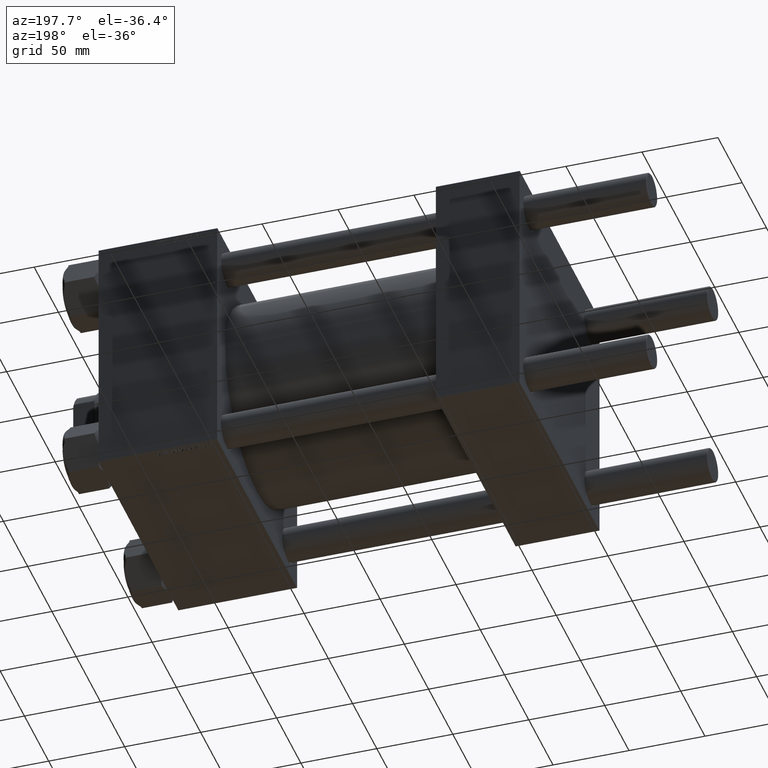
[diagram: clean part render]
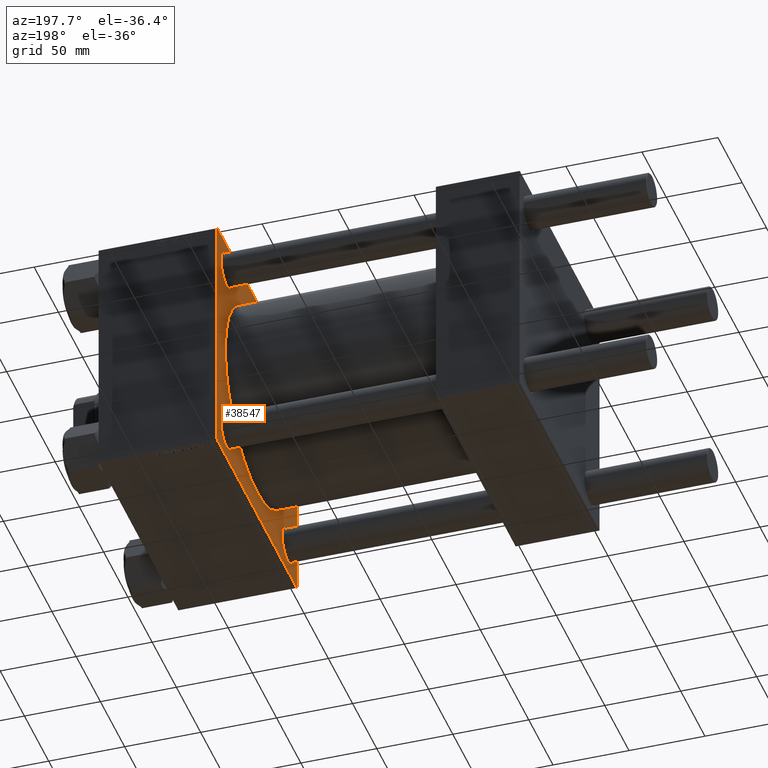
[diagram: same view with one face highlighted and labeled with its STEP entity id]
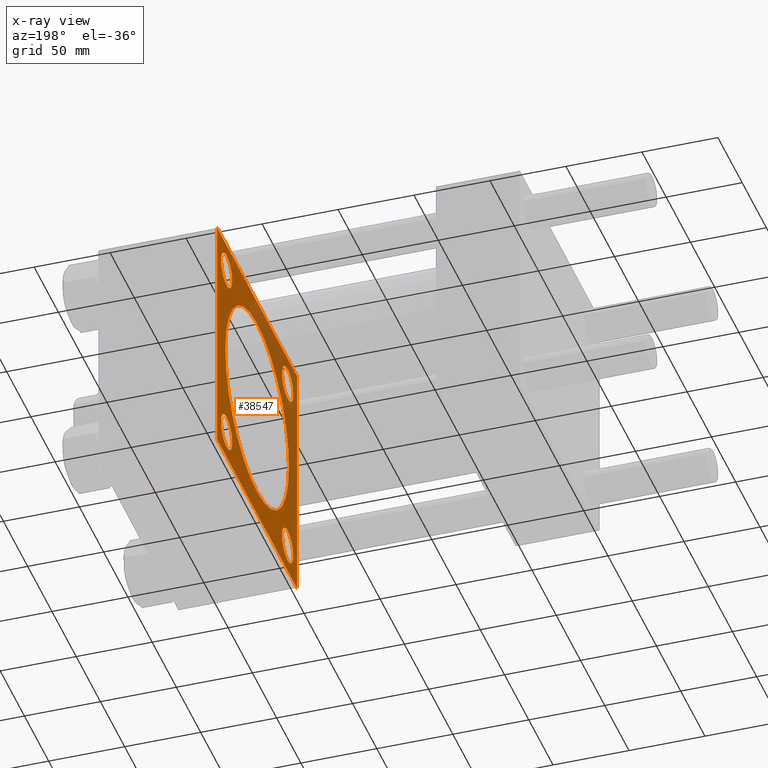
[diagram: x-ray of the same camera — body ghosted, the highlighted face saturated]
A machine part, auxiliary view. The second image highlights one B-rep face of the part: STEP entity #38547.
The next image is the same camera in x-ray: the body ghosted, the highlighted face saturated — about 31% of this face is hidden behind the body in this view.
In plain terms, the highlighted planar face has unit normal (-1, 0, 0).
Its self-contained STEP definition (entity closure, byte-faithful):
#606 = EDGE_CURVE ( 'NONE', #43558, #34295, #28354, .T. ) ;
#828 = CARTESIAN_POINT ( 'NONE',  ( 198.9999999999999716, 0.000000000000000000, 0.000000000000000000 ) ) ;
#929 = CARTESIAN_POINT ( 'NONE',  ( 198.9999999999999716, 82.50000000000001421, 82.50000000000000000 ) ) ;
#955 = ORIENTED_EDGE ( 'NONE', *, *, #39192, .T. ) ;
#1543 = DIRECTION ( 'NONE',  ( 0.000000000000000000, 0.000000000000000000, 1.000000000000000000 ) ) ;
#1869 = CIRCLE ( 'NONE', #21421, 11.49999999999992717 ) ;
#2052 = EDGE_CURVE ( 'NONE', #45145, #50472, #37233, .T. ) ;
#2469 = EDGE_CURVE ( 'NONE', #13764, #42775, #33161, .T. ) ;
#3042 = CARTESIAN_POINT ( 'NONE',  ( 198.9999999999999716, 62.95000000000000284, -74.45000000000010232 ) ) ;
#3587 = ORIENTED_EDGE ( 'NONE', *, *, #47274, .T. ) ;
#4396 = CARTESIAN_POINT ( 'NONE',  ( 198.9999999999999716, 62.95000000000000284, -51.44999999999991047 ) ) ;
#4426 = DIRECTION ( 'NONE',  ( 1.000000000000000000, 0.000000000000000000, -0.000000000000000000 ) ) ;
#4442 = LINE ( 'NONE', #46785, #44709 ) ;
#4508 = FACE_OUTER_BOUND ( 'NONE', #43540, .T. ) ;
#4756 = CARTESIAN_POINT ( 'NONE',  ( 198.9999999999999716, 0.000000000000000000, 0.000000000000000000 ) ) ;
#5384 = DIRECTION ( 'NONE',  ( 1.000000000000000000, 0.000000000000000000, -0.000000000000000000 ) ) ;
#5419 = LINE ( 'NONE', #20984, #11722 ) ;
#5575 = DIRECTION ( 'NONE',  ( 1.000000000000000000, 0.000000000000000000, -0.000000000000000000 ) ) ;
#6756 = LINE ( 'NONE', #37380, #16080 ) ;
#7096 = CIRCLE ( 'NONE', #48644, 11.49999999999992717 ) ;
#7192 = AXIS2_PLACEMENT_3D ( 'NONE', #29350, #5384, #9463 ) ;
#7299 = LINE ( 'NONE', #23125, #23743 ) ;
#8409 = ORIENTED_EDGE ( 'NONE', *, *, #30287, .T. ) ;
#8663 = CARTESIAN_POINT ( 'NONE',  ( 198.9999999999999716, -62.94999999999998153, 62.95000000000001705 ) ) ;
#8885 = CIRCLE ( 'NONE', #13773, 65.50000000000001421 ) ;
#9317 = CIRCLE ( 'NONE', #44343, 11.50000000000009415 ) ;
#9419 = DIRECTION ( 'NONE',  ( 1.000000000000000000, 0.000000000000000000, -0.000000000000000000 ) ) ;
#9463 = DIRECTION ( 'NONE',  ( 0.000000000000000000, 0.000000000000000000, 1.000000000000000000 ) ) ;
#9905 = CARTESIAN_POINT ( 'NONE',  ( 198.9999999999999716, -81.99999999999998579, -82.50000000000002842 ) ) ;
#10149 = CARTESIAN_POINT ( 'NONE',  ( 198.9999999999999716, -62.94999999999998153, -74.45000000000011653 ) ) ;
#10682 = ORIENTED_EDGE ( 'NONE', *, *, #48374, .T. ) ;
#10843 = CARTESIAN_POINT ( 'NONE',  ( 198.9999999999999716, -82.24999999999886313, -82.25000000000115108 ) ) ;
#11722 = VECTOR ( 'NONE', #36557, 1000.000000000000114 ) ;
#11911 = DIRECTION ( 'NONE',  ( 0.000000000000000000, 0.000000000000000000, 1.000000000000000000 ) ) ;
#12165 = LINE ( 'NONE', #929, #35973 ) ;
#12824 = CARTESIAN_POINT ( 'NONE',  ( 198.9999999999999716, -62.94999999999998153, -62.95000000000001705 ) ) ;
#12831 = EDGE_CURVE ( 'NONE', #39007, #43762, #27694, .T. ) ;
#13085 = AXIS2_PLACEMENT_3D ( 'NONE', #4756, #46605, #11911 ) ;
#13764 = VERTEX_POINT ( 'NONE', #24998 ) ;
#13773 = AXIS2_PLACEMENT_3D ( 'NONE', #828, #27355, #42922 ) ;
#14435 = VECTOR ( 'NONE', #37739, 1000.000000000000000 ) ;
#15272 = CIRCLE ( 'NONE', #19349, 11.50000000000009415 ) ;
#15854 = ORIENTED_EDGE ( 'NONE', *, *, #19972, .T. ) ;
#16080 = VECTOR ( 'NONE', #49345, 1000.000000000000000 ) ;
#16151 = ORIENTED_EDGE ( 'NONE', *, *, #16364, .F. ) ;
#16347 = ORIENTED_EDGE ( 'NONE', *, *, #30902, .T. ) ;
#16364 = EDGE_CURVE ( 'NONE', #39566, #38526, #12165, .T. ) ;
#17498 = CARTESIAN_POINT ( 'NONE',  ( 198.9999999999999716, -82.50000000000000000, -82.00000000000002842 ) ) ;
#17645 = ORIENTED_EDGE ( 'NONE', *, *, #12831, .T. ) ;
#18010 = CARTESIAN_POINT ( 'NONE',  ( 198.9999999999999716, 82.50000000000001421, -82.00000000000002842 ) ) ;
#18076 = DIRECTION ( 'NONE',  ( 1.000000000000000000, 0.000000000000000000, 0.000000000000000000 ) ) ;
#18449 = VERTEX_POINT ( 'NONE', #9905 ) ;
#18737 = EDGE_LOOP ( 'NONE', ( #15854, #21665 ) ) ;
#18764 = CARTESIAN_POINT ( 'NONE',  ( 198.9999999999999716, 8.021436534415166404E-15, -65.50000000000001421 ) ) ;
#19303 = DIRECTION ( 'NONE',  ( -0.000000000000000000, 0.7071067811865574537, 0.7071067811865376918 ) ) ;
#19349 = AXIS2_PLACEMENT_3D ( 'NONE', #12824, #24545, #48009 ) ;
#19972 = EDGE_CURVE ( 'NONE', #42162, #42438, #1869, .T. ) ;
#20929 = ORIENTED_EDGE ( 'NONE', *, *, #2052, .T. ) ;
#20984 = CARTESIAN_POINT ( 'NONE',  ( 198.9999999999999716, 82.25000000000001421, -82.25000000000001421 ) ) ;
#21144 = DIRECTION ( 'NONE',  ( 0.000000000000000000, 0.000000000000000000, 1.000000000000000000 ) ) ;
#21244 = ORIENTED_EDGE ( 'NONE', *, *, #23435, .T. ) ;
#21421 = AXIS2_PLACEMENT_3D ( 'NONE', #8663, #40792, #29047 ) ;
#21549 = EDGE_LOOP ( 'NONE', ( #10682, #26992 ) ) ;
#21665 = ORIENTED_EDGE ( 'NONE', *, *, #22882, .T. ) ;
#21883 = DIRECTION ( 'NONE',  ( 0.000000000000000000, 0.000000000000000000, -1.000000000000000000 ) ) ;
#22213 = EDGE_LOOP ( 'NONE', ( #49419, #955 ) ) ;
#22402 = CARTESIAN_POINT ( 'NONE',  ( 198.9999999999999716, -62.94999999999998153, -62.95000000000001705 ) ) ;
#22565 = EDGE_CURVE ( 'NONE', #34295, #43558, #15272, .T. ) ;
#22882 = EDGE_CURVE ( 'NONE', #42438, #42162, #7096, .T. ) ;
#23125 = CARTESIAN_POINT ( 'NONE',  ( 198.9999999999999716, -82.24999999999882050, 82.25000000000110845 ) ) ;
#23289 = CARTESIAN_POINT ( 'NONE',  ( 198.9999999999999716, 62.95000000000000284, 74.45000000000010232 ) ) ;
#23371 = EDGE_CURVE ( 'NONE', #35124, #18449, #6756, .T. ) ;
#23435 = EDGE_CURVE ( 'NONE', #18449, #42775, #26154, .T. ) ;
#23458 = CARTESIAN_POINT ( 'NONE',  ( 198.9999999999999716, 0.000000000000000000, 65.50000000000001421 ) ) ;
#23663 = AXIS2_PLACEMENT_3D ( 'NONE', #38193, #18076, #21883 ) ;
#23743 = VECTOR ( 'NONE', #19303, 999.9999999999998863 ) ;
#24140 = VERTEX_POINT ( 'NONE', #23458 ) ;
#24343 = CARTESIAN_POINT ( 'NONE',  ( 198.9999999999999716, 62.95000000000000284, 51.44999999999991047 ) ) ;
#24545 = DIRECTION ( 'NONE',  ( 1.000000000000000000, 0.000000000000000000, -0.000000000000000000 ) ) ;
#24998 = CARTESIAN_POINT ( 'NONE',  ( 198.9999999999999716, -82.49999999999997158, 81.99999999999997158 ) ) ;
#26154 = LINE ( 'NONE', #10843, #39698 ) ;
#26992 = ORIENTED_EDGE ( 'NONE', *, *, #43493, .T. ) ;
#27142 = DIRECTION ( 'NONE',  ( 0.000000000000000000, 0.7071067811865474617, -0.7071067811865474617 ) ) ;
#27355 = DIRECTION ( 'NONE',  ( 1.000000000000000000, 0.000000000000000000, 0.000000000000000000 ) ) ;
#27694 = LINE ( 'NONE', #31280, #30270 ) ;
#28338 = DIRECTION ( 'NONE',  ( 1.000000000000000000, 0.000000000000000000, -0.000000000000000000 ) ) ;
#28354 = CIRCLE ( 'NONE', #40588, 11.50000000000009415 ) ;
#28696 = AXIS2_PLACEMENT_3D ( 'NONE', #35972, #5575, #21144 ) ;
#29047 = DIRECTION ( 'NONE',  ( 0.000000000000000000, 0.000000000000000000, 1.000000000000000000 ) ) ;
#29340 = CARTESIAN_POINT ( 'NONE',  ( 198.9999999999999716, -62.94999999999998153, 74.44999999999994600 ) ) ;
#29350 = CARTESIAN_POINT ( 'NONE',  ( 198.9999999999999716, 62.95000000000000284, 62.95000000000000284 ) ) ;
#29782 = CARTESIAN_POINT ( 'NONE',  ( 198.9999999999999716, -62.94999999999998153, 51.45000000000009521 ) ) ;
#30215 = VERTEX_POINT ( 'NONE', #4396 ) ;
#30270 = VECTOR ( 'NONE', #30763, 1000.000000000000000 ) ;
#30287 = EDGE_CURVE ( 'NONE', #50472, #45145, #47122, .T. ) ;
#30760 = ORIENTED_EDGE ( 'NONE', *, *, #37670, .T. ) ;
#30763 = DIRECTION ( 'NONE',  ( 0.000000000000000000, 0.000000000000000000, -1.000000000000000000 ) ) ;
#30902 = EDGE_CURVE ( 'NONE', #39566, #39007, #4442, .T. ) ;
#31047 = FACE_BOUND ( 'NONE', #22213, .T. ) ;
#31280 = CARTESIAN_POINT ( 'NONE',  ( 198.9999999999999716, 82.50000000000001421, 82.50000000000000000 ) ) ;
#31510 = EDGE_CURVE ( 'NONE', #24140, #36184, #8885, .T. ) ;
#31666 = ORIENTED_EDGE ( 'NONE', *, *, #23371, .T. ) ;
#31899 = DIRECTION ( 'NONE',  ( 0.000000000000000000, 0.000000000000000000, 1.000000000000000000 ) ) ;
#33161 = LINE ( 'NONE', #48701, #14435 ) ;
#34295 = VERTEX_POINT ( 'NONE', #10149 ) ;
#34882 = FACE_BOUND ( 'NONE', #42759, .T. ) ;
#35124 = VERTEX_POINT ( 'NONE', #50425 ) ;
#35132 = CARTESIAN_POINT ( 'NONE',  ( 198.9999999999999716, 82.00000000000001421, 82.50000000000000000 ) ) ;
#35398 = CARTESIAN_POINT ( 'NONE',  ( 198.9999999999999716, -81.99999999999995737, 82.49999999999997158 ) ) ;
#35562 = DIRECTION ( 'NONE',  ( 0.000000000000000000, 0.000000000000000000, 1.000000000000000000 ) ) ;
#35637 = DIRECTION ( 'NONE',  ( 0.000000000000000000, -1.000000000000000000, -1.682156097916904081E-16 ) ) ;
#35972 = CARTESIAN_POINT ( 'NONE',  ( 198.9999999999999716, 62.95000000000000284, -62.95000000000000284 ) ) ;
#35973 = VECTOR ( 'NONE', #35637, 1000.000000000000000 ) ;
#36184 = VERTEX_POINT ( 'NONE', #18764 ) ;
#36557 = DIRECTION ( 'NONE',  ( -0.000000000000000000, -0.7071067811865474617, -0.7071067811865474617 ) ) ;
#37189 = VERTEX_POINT ( 'NONE', #3042 ) ;
#37233 = CIRCLE ( 'NONE', #50258, 11.50000000000009415 ) ;
#37380 = CARTESIAN_POINT ( 'NONE',  ( 198.9999999999999716, 82.50000000000001421, -82.50000000000002842 ) ) ;
#37670 = EDGE_CURVE ( 'NONE', #13764, #38526, #7299, .T. ) ;
#37739 = DIRECTION ( 'NONE',  ( 0.000000000000000000, -1.682156097916903834E-16, -1.000000000000000000 ) ) ;
#37962 = DIRECTION ( 'NONE',  ( 1.000000000000000000, 0.000000000000000000, -0.000000000000000000 ) ) ;
#38193 = CARTESIAN_POINT ( 'NONE',  ( 198.9999999999999716, 0.000000000000000000, 0.000000000000000000 ) ) ;
#38526 = VERTEX_POINT ( 'NONE', #35398 ) ;
#38547 = ADVANCED_FACE ( 'NONE', ( #39458, #50417, #46345, #34882, #31047, #4508 ), #38943, .T. ) ;
#38943 = PLANE ( 'NONE',  #13085 ) ;
#39007 = VERTEX_POINT ( 'NONE', #50301 ) ;
#39192 = EDGE_CURVE ( 'NONE', #36184, #24140, #47309, .T. ) ;
#39375 = CARTESIAN_POINT ( 'NONE',  ( 198.9999999999999716, 62.95000000000000284, 62.95000000000000284 ) ) ;
#39458 = FACE_BOUND ( 'NONE', #18737, .T. ) ;
#39566 = VERTEX_POINT ( 'NONE', #35132 ) ;
#39698 = VECTOR ( 'NONE', #49108, 999.9999999999998863 ) ;
#39794 = CARTESIAN_POINT ( 'NONE',  ( 198.9999999999999716, -62.94999999999998153, 62.95000000000001705 ) ) ;
#40078 = CARTESIAN_POINT ( 'NONE',  ( 198.9999999999999716, 62.95000000000000284, -62.95000000000000284 ) ) ;
#40588 = AXIS2_PLACEMENT_3D ( 'NONE', #22402, #37962, #45359 ) ;
#40792 = DIRECTION ( 'NONE',  ( 1.000000000000000000, 0.000000000000000000, -0.000000000000000000 ) ) ;
#41243 = ORIENTED_EDGE ( 'NONE', *, *, #606, .T. ) ;
#41931 = EDGE_LOOP ( 'NONE', ( #20929, #8409 ) ) ;
#42162 = VERTEX_POINT ( 'NONE', #29340 ) ;
#42438 = VERTEX_POINT ( 'NONE', #29782 ) ;
#42759 = EDGE_LOOP ( 'NONE', ( #41243, #45642 ) ) ;
#42775 = VERTEX_POINT ( 'NONE', #17498 ) ;
#42922 = DIRECTION ( 'NONE',  ( 0.000000000000000000, 0.000000000000000000, -1.000000000000000000 ) ) ;
#43493 = EDGE_CURVE ( 'NONE', #37189, #30215, #49071, .T. ) ;
#43540 = EDGE_LOOP ( 'NONE', ( #31666, #21244, #47445, #30760, #16151, #16347, #17645, #3587 ) ) ;
#43558 = VERTEX_POINT ( 'NONE', #48669 ) ;
#43762 = VERTEX_POINT ( 'NONE', #18010 ) ;
#44343 = AXIS2_PLACEMENT_3D ( 'NONE', #40078, #28338, #1543 ) ;
#44709 = VECTOR ( 'NONE', #27142, 1000.000000000000114 ) ;
#45145 = VERTEX_POINT ( 'NONE', #23289 ) ;
#45359 = DIRECTION ( 'NONE',  ( 0.000000000000000000, 0.000000000000000000, 1.000000000000000000 ) ) ;
#45642 = ORIENTED_EDGE ( 'NONE', *, *, #22565, .T. ) ;
#46345 = FACE_BOUND ( 'NONE', #21549, .T. ) ;
#46605 = DIRECTION ( 'NONE',  ( -1.000000000000000000, -0.000000000000000000, 0.000000000000000000 ) ) ;
#46785 = CARTESIAN_POINT ( 'NONE',  ( 198.9999999999999716, 82.25000000000000000, 82.25000000000000000 ) ) ;
#47122 = CIRCLE ( 'NONE', #7192, 11.50000000000009415 ) ;
#47274 = EDGE_CURVE ( 'NONE', #43762, #35124, #5419, .T. ) ;
#47309 = CIRCLE ( 'NONE', #23663, 65.50000000000001421 ) ;
#47445 = ORIENTED_EDGE ( 'NONE', *, *, #2469, .F. ) ;
#48009 = DIRECTION ( 'NONE',  ( 0.000000000000000000, 0.000000000000000000, 1.000000000000000000 ) ) ;
#48374 = EDGE_CURVE ( 'NONE', #30215, #37189, #9317, .T. ) ;
#48644 = AXIS2_PLACEMENT_3D ( 'NONE', #39794, #9419, #31899 ) ;
#48669 = CARTESIAN_POINT ( 'NONE',  ( 198.9999999999999716, -62.94999999999998153, -51.44999999999992468 ) ) ;
#48701 = CARTESIAN_POINT ( 'NONE',  ( 198.9999999999999716, -82.49999999999997158, 82.49999999999997158 ) ) ;
#49071 = CIRCLE ( 'NONE', #28696, 11.50000000000009415 ) ;
#49108 = DIRECTION ( 'NONE',  ( 0.000000000000000000, -0.7071067811865574537, 0.7071067811865376918 ) ) ;
#49345 = DIRECTION ( 'NONE',  ( 0.000000000000000000, -1.000000000000000000, 0.000000000000000000 ) ) ;
#49419 = ORIENTED_EDGE ( 'NONE', *, *, #31510, .T. ) ;
#50258 = AXIS2_PLACEMENT_3D ( 'NONE', #39375, #4426, #35562 ) ;
#50301 = CARTESIAN_POINT ( 'NONE',  ( 198.9999999999999716, 82.50000000000001421, 82.00000000000000000 ) ) ;
#50417 = FACE_BOUND ( 'NONE', #41931, .T. ) ;
#50425 = CARTESIAN_POINT ( 'NONE',  ( 198.9999999999999716, 82.00000000000001421, -82.50000000000002842 ) ) ;
#50472 = VERTEX_POINT ( 'NONE', #24343 ) ;